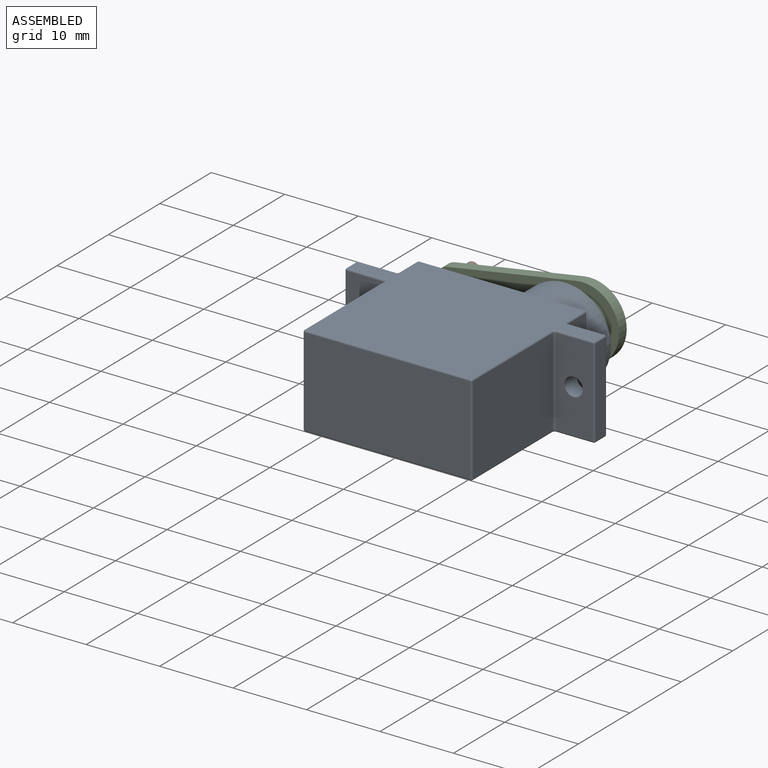
[diagram: assembled view]
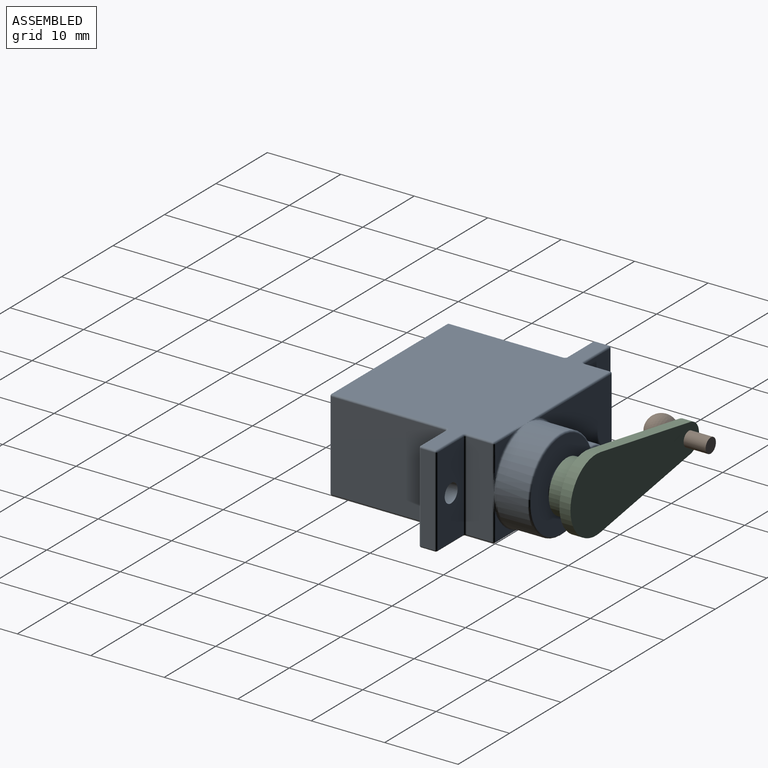
[diagram: assembled view, second angle]
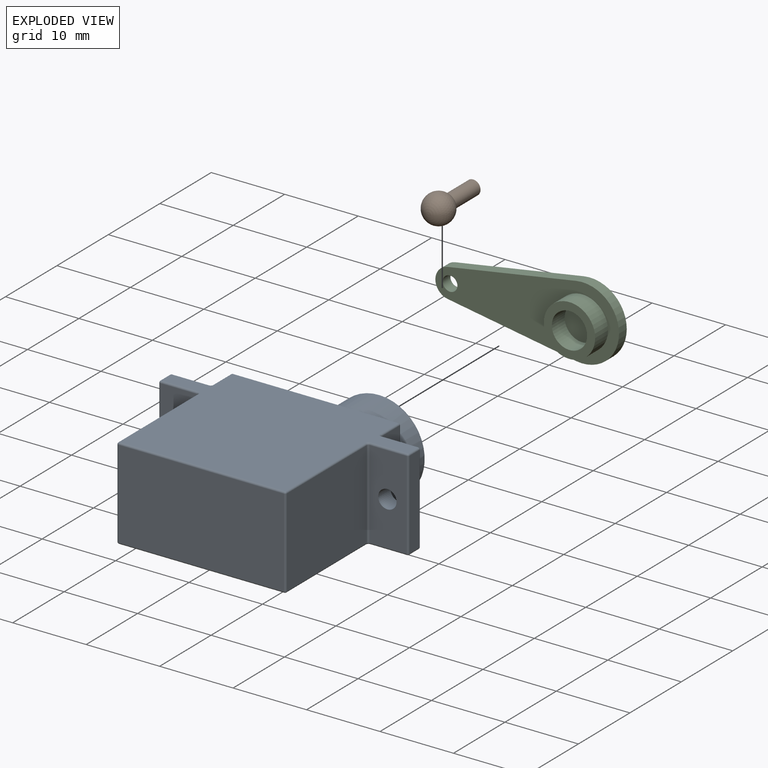
[diagram: exploded view]
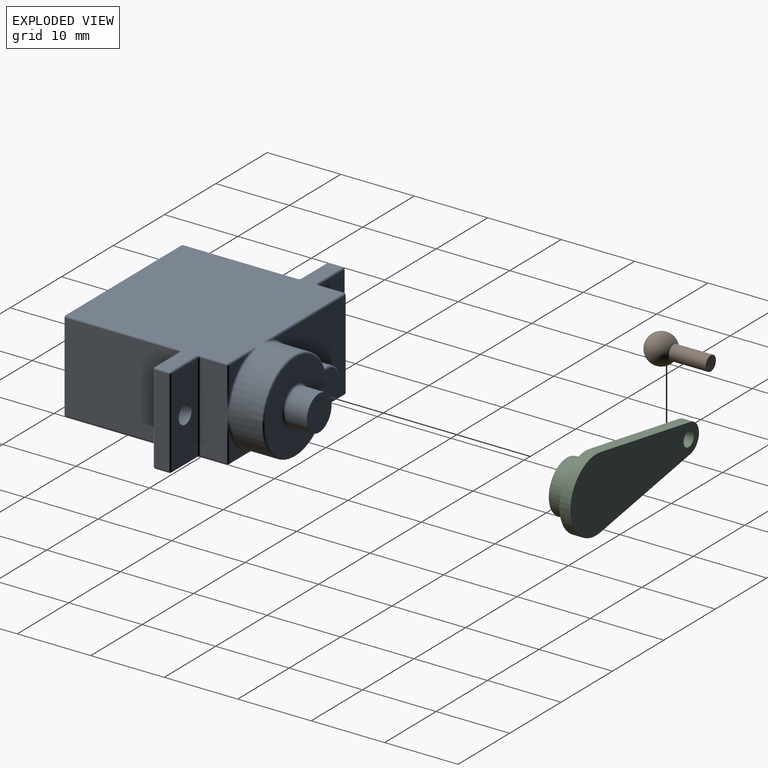
[diagram: exploded view, second angle]
ASSEMBLY  parts=3 mates=2
PART A: 118 faces, bbox 34x30.4x13.5 mm
  f0: plane 33.5x21.9mm, normal (0,0,-1), area 513.9mm2, adj f34,f35,f41,f42,f46,f51,f52,f57
  f1: plane 33.5x21.9mm, normal (0,0,1), area 513.9mm2, adj f31,f32,f44,f49,f54,f55,f58,f59
  f2: plane 14x12mm, normal (0,1,0), area 122.6mm2, adj f96,f97,f99,f100,f110,f111
  f3: plane 3.5x3.5mm, normal (0,1,0), area 4.5mm2, adj f109,f114,f117
  f4: plane 15.5x12mm, normal (-1,0,0), area 186mm2, adj f40,f41,f49,f50
  f5: plane 22.5x12mm, normal (0,-1,0), area 270mm2, adj f40,f42,f43,f44
  f6: plane 15.5x12mm, normal (1,0,0), area 186mm2, adj f43,f52,f53,f54
  f7: plane 12x5mm, normal (0,-1,0), area 55.1mm2, adj f22,f53,f62,f63,f64
  f8: plane 12x1.9mm, normal (1,0,0), area 22.8mm2, adj f63,f72,f73,f74
  f9: plane 12x5mm, normal (0,1,0), area 55.1mm2, adj f22,f73,f85,f86,f87
  f10: plane 12x3.5mm, normal (1,0,0), area 42mm2, adj f24,f25,f86,f102,f103,f113,f114
  f11: plane 3.5x3.5mm, normal (0,1,0), area 4.5mm2, adj f101,f112,f113
  f12: plane 12x3.5mm, normal (-1,0,0), area 42mm2, adj f83,f84,f95,f96
  f13: plane 12x5mm, normal (0,1,0), area 55.1mm2, adj f21,f70,f71,f79,f83
  f14: plane 12x1.9mm, normal (-1,0,0), area 22.8mm2, adj f60,f61,f69,f70
  f15: plane 12x5mm, normal (0,-1,0), area 55.1mm2, adj f21,f50,f51,f59,f60
  f16: cylinder r=6.25mm len=12.5mm, axis (0,-1,0), area 146.5mm2, adj f27,f28,f29,f37,f38,f82,f88,f98
  f17: cylinder r=2.4mm len=4.8mm, axis (0,-1,0), area 34.8mm2, adj f81,f88,f97,f98
  f18: plane 14.4x12mm, normal (0,1,0), area 100mm2, adj f23,f80,f81,f82,f89
  f19: cylinder r=2.4mm len=4.8mm, axis (0,-1,0), area 44.5mm2, adj f20,f23
  f20: plane 4.8x4.8mm, normal (0,1,0), area 18.1mm2, adj f19
  f21: cylinder r=1.25mm len=2.5mm, axis (0,1,0), area 18.8mm2, adj f13,f15
  f22: cylinder r=1.25mm len=2.5mm, axis (0,1,0), area 18.8mm2, adj f7,f9
  f23: torus R=2.65mm, axis (0,1,0), area 6.1mm2, adj f18,f19
  f24: bspline ~2.5x0.25mm, area 0.5mm2, adj f10,f25,f114,f116
  f25: bspline ~2.5x0.25mm, area 0.5mm2, adj f10,f24,f26,f113
  f26: bspline ~2.5x0.41mm, area 0.4mm2, adj f25,f27,f112,f113
  f27: bspline ~2.42x0.48mm, area 0.4mm2, adj f16,f26,f28,f112
  f28: bspline ~2.42x0.48mm, area 0.4mm2, adj f16,f27,f116,f117
  f29: bspline ~2.42x0.48mm, area 0.4mm2, adj f16,f30,f111,f115
  f30: bspline ~2.5x0.41mm, area 0.4mm2, adj f29,f31,f110,f111
  f31: bspline ~2.5x0.25mm, area 0.5mm2, adj f1,f30,f32,f110
  f32: bspline ~2.5x0.25mm, area 0.5mm2, adj f1,f31,f33,f109
  f33: bspline ~2.5x0.41mm, area 0.4mm2, adj f32,f109,f115,f117
  f34: bspline ~2.5x0.25mm, area 0.5mm2, adj f0,f35,f101,f106
  f35: bspline ~2.5x0.25mm, area 0.5mm2, adj f0,f34,f36,f100
  f36: bspline ~2.5x0.41mm, area 0.4mm2, adj f35,f37,f99,f100
  f37: bspline ~2.42x0.48mm, area 0.4mm2, adj f16,f36,f38,f99
  f38: bspline ~2.42x0.48mm, area 0.4mm2, adj f16,f37,f106,f112
  f39: sphere r=0.25mm, area 0.1mm2, adj f40,f41,f42
  f40: cylinder r=0.25mm len=12mm, axis (0,0,-1), area 4.7mm2, adj f4,f5,f39,f45
  f41: cylinder r=0.25mm len=15.5mm, axis (0,-1,0), area 6.1mm2, adj f0,f4,f39,f46
  f42: cylinder r=0.25mm len=22.5mm, axis (1,0,0), area 8.8mm2, adj f0,f5,f39,f47
  f43: cylinder r=0.25mm len=12mm, axis (0,0,-1), area 4.7mm2, adj f5,f6,f47,f48
  f44: cylinder r=0.25mm len=22.5mm, axis (-1,0,0), area 8.8mm2, adj f1,f5,f45,f48
  f45: sphere r=0.25mm, area 0.1mm2, adj f40,f44,f49
  f46: torus R=0.5mm, axis (0,0,1), area 0.2mm2, adj f0,f41,f50,f51
  f47: sphere r=0.25mm, area 0.1mm2, adj f42,f43,f52
  f48: sphere r=0.25mm, area 0.1mm2, adj f43,f44,f54
  f49: cylinder r=0.25mm len=15.5mm, axis (0,1,0), area 6.1mm2, adj f1,f4,f45,f55
  f50: cylinder r=0.25mm len=12mm, axis (0,0,1), area 4.7mm2, adj f4,f15,f46,f55
  f51: cylinder r=0.25mm len=5mm, axis (1,0,0), area 2mm2, adj f0,f15,f46,f56
  f52: cylinder r=0.25mm len=15.5mm, axis (0,1,0), area 6.1mm2, adj f0,f6,f47,f57
  f53: cylinder r=0.25mm len=12mm, axis (0,0,1), area 4.7mm2, adj f6,f7,f57,f58
  f54: cylinder r=0.25mm len=15.5mm, axis (0,-1,0), area 6.1mm2, adj f1,f6,f48,f58
  f55: torus R=0.5mm, axis (0,0,1), area 0.2mm2, adj f1,f49,f50,f59
  f56: sphere r=0.25mm, area 0.1mm2, adj f51,f60,f61
  f57: torus R=0.5mm, axis (0,0,1), area 0.2mm2, adj f0,f52,f53,f62
  f58: torus R=0.5mm, axis (0,0,1), area 0.2mm2, adj f1,f53,f54,f64
  f59: cylinder r=0.25mm len=5mm, axis (-1,0,0), area 2mm2, adj f1,f15,f55,f65
  f60: cylinder r=0.25mm len=12mm, axis (0,0,-1), area 4.7mm2, adj f14,f15,f56,f65
  f61: cylinder r=0.25mm len=1.9mm, axis (0,-1,0), area 0.7mm2, adj f0,f14,f56,f66
  f62: cylinder r=0.25mm len=5mm, axis (1,0,0), area 2mm2, adj f0,f7,f57,f67
  f63: cylinder r=0.25mm len=12mm, axis (0,0,-1), area 4.7mm2, adj f7,f8,f67,f68
  f64: cylinder r=0.25mm len=5mm, axis (-1,0,0), area 2mm2, adj f1,f7,f58,f68
  f65: sphere r=0.25mm, area 0.1mm2, adj f59,f60,f69
  f66: sphere r=0.25mm, area 0.1mm2, adj f61,f70,f71
  f67: sphere r=0.25mm, area 0.1mm2, adj f62,f63,f72
  f68: sphere r=0.25mm, area 0.1mm2, adj f63,f64,f74
  f69: cylinder r=0.25mm len=1.9mm, axis (0,1,0), area 0.7mm2, adj f1,f14,f65,f75
  f70: cylinder r=0.25mm len=12mm, axis (0,0,-1), area 4.7mm2, adj f13,f14,f66,f75
  f71: cylinder r=0.25mm len=5mm, axis (-1,0,0), area 2mm2, adj f0,f13,f66,f76
  f72: cylinder r=0.25mm len=1.9mm, axis (0,1,0), area 0.7mm2, adj f0,f8,f67,f77
  f73: cylinder r=0.25mm len=12mm, axis (0,0,-1), area 4.7mm2, adj f8,f9,f77,f78
  f74: cylinder r=0.25mm len=1.9mm, axis (0,-1,0), area 0.7mm2, adj f1,f8,f68,f78
  f75: sphere r=0.25mm, area 0.1mm2, adj f69,f70,f79
  f76: torus R=0.5mm, axis (0,0,1), area 0.2mm2, adj f0,f71,f83,f84
  f77: sphere r=0.25mm, area 0.1mm2, adj f72,f73,f85
  f78: sphere r=0.25mm, area 0.1mm2, adj f73,f74,f87
  f79: cylinder r=0.25mm len=5mm, axis (1,0,0), area 2mm2, adj f1,f13,f75,f91
  f80: torus R=0.5mm, axis (0,1,0), area 0.2mm2, adj f18,f81,f82,f88
  f81: torus R=2.15mm, axis (0,1,0), area 3.1mm2, adj f17,f18,f80,f89
  f82: torus R=6mm, axis (0,1,0), area 13.2mm2, adj f16,f18,f80,f89
  f83: cylinder r=0.25mm len=12mm, axis (0,0,1), area 4.7mm2, adj f12,f13,f76,f91
  f84: cylinder r=0.25mm len=3.5mm, axis (0,-1,0), area 1.4mm2, adj f0,f12,f76,f92
  f85: cylinder r=0.25mm len=5mm, axis (-1,0,0), area 2mm2, adj f0,f9,f77,f93
  f86: cylinder r=0.25mm len=12mm, axis (0,0,1), area 4.7mm2, adj f9,f10,f93,f94
  f87: cylinder r=0.25mm len=5mm, axis (1,0,0), area 2mm2, adj f1,f9,f78,f94
  f88: cylinder r=0.25mm len=4.3mm, axis (0,1,0), area 1.4mm2, adj f16,f17,f80,f90
  f89: torus R=0.5mm, axis (0,1,0), area 0.2mm2, adj f18,f81,f82,f98
  f90: sphere r=0.25mm, area 0.1mm2, adj f88,f97,f99
  f91: torus R=0.5mm, axis (0,0,1), area 0.2mm2, adj f1,f79,f83,f95
  f92: sphere r=0.25mm, area 0.1mm2, adj f84,f96,f100
  f93: torus R=0.5mm, axis (0,0,1), area 0.2mm2, adj f0,f85,f86,f102
  f94: torus R=0.5mm, axis (0,0,1), area 0.2mm2, adj f1,f86,f87,f103
  f95: cylinder r=0.25mm len=3.5mm, axis (0,1,0), area 1.4mm2, adj f1,f12,f91,f104
  f96: cylinder r=0.25mm len=12mm, axis (0,0,-1), area 4.7mm2, adj f2,f12,f92,f104
  f97: torus R=2.65mm, axis (0,-1,0), area 3.3mm2, adj f2,f17,f90,f105
  f98: cylinder r=0.25mm len=4.3mm, axis (0,1,0), area 1.4mm2, adj f16,f17,f89,f105
  f99: torus R=6.5mm, axis (0,-1,0), area 1.9mm2, adj f2,f16,f36,f37,f90
  f100: cylinder r=0.25mm len=14.01mm, axis (-1,0,0), area 5.5mm2, adj f0,f2,f35,f36,f92
  f101: cylinder r=0.25mm len=3.51mm, axis (-1,0,0), area 1.4mm2, adj f0,f11,f34,f106,f107
  f102: cylinder r=0.25mm len=3.5mm, axis (0,1,0), area 1.4mm2, adj f0,f10,f93,f107
  f103: cylinder r=0.25mm len=3.5mm, axis (0,-1,0), area 1.4mm2, adj f1,f10,f94,f108
  f104: sphere r=0.25mm, area 0.1mm2, adj f95,f96,f110
  f105: sphere r=0.25mm, area 0.1mm2, adj f97,f98,f111
  f106: bspline ~2.5x0.41mm, area 0.4mm2, adj f34,f38,f101,f112
  f107: sphere r=0.25mm, area 0.1mm2, adj f101,f102,f113
  f108: sphere r=0.25mm, area 0.1mm2, adj f103,f109,f114
  f109: cylinder r=0.25mm len=3.51mm, axis (1,0,0), area 1.4mm2, adj f1,f3,f32,f33,f108
  f110: cylinder r=0.25mm len=14.01mm, axis (1,0,0), area 5.5mm2, adj f1,f2,f30,f31,f104
  f111: torus R=6.5mm, axis (0,-1,0), area 1.9mm2, adj f2,f16,f29,f30,f105
  f112: torus R=6.5mm, axis (0,-1,0), area 2mm2, adj f11,f16,f26,f27,f38,f106
  f113: cylinder r=0.25mm len=3.51mm, axis (0,0,-1), area 1.4mm2, adj f10,f11,f25,f26,f107
  f114: cylinder r=0.25mm len=3.51mm, axis (0,0,-1), area 1.4mm2, adj f3,f10,f24,f108,f116
  f115: bspline ~2.42x0.48mm, area 0.4mm2, adj f16,f29,f33,f117
  f116: bspline ~2.5x0.41mm, area 0.4mm2, adj f24,f28,f114,f117
  f117: torus R=6.5mm, axis (0,-1,0), area 2mm2, adj f3,f16,f28,f33,f115,f116
PART B: 3 faces, bbox 4x8.7x4 mm
  f0: cylinder r=1mm len=5mm, axis (0,1,0), area 31.4mm2, adj f1,f2
  f1: plane 2x2mm, normal (0,1,0), area 3.1mm2, adj f0
  f2: sphere r=2mm, area 46.9mm2, adj f0
PART C: 11 faces, bbox 25x4x10 mm
  f0: cylinder r=2.4mm len=4.8mm, axis (0,1,0), area 37.7mm2, adj f2,f10
  f1: cylinder r=3.5mm len=7mm, axis (0,1,0), area 55mm2, adj f2,f3
  f2: plane 7x7mm, normal (0,-1,0), area 20.4mm2, adj f0,f1
  f3: plane 25x10mm, normal (0,-1,0), area 131.7mm2, adj f1,f5,f6,f7,f8,f9
  f4: plane 25x10mm, normal (0,1,0), area 170.2mm2, adj f5,f6,f7,f8,f9
  f5: cylinder r=1mm len=2mm, axis (0,-1,0), area 9.4mm2, adj f3,f4
  f6: cylinder r=2mm len=3.94mm, axis (0,-1,0), area 8.4mm2, adj f3,f4,f7,f9
  f7: plane 17.5x2.96mm, normal (-0.17,0,-0.99), area 26.6mm2, adj f3,f4,f6,f8
  f8: cylinder r=5mm len=10mm, axis (0,-1,0), area 26.1mm2, adj f3,f4,f7,f9
  f9: plane 17.5x2.96mm, normal (-0.17,0,0.99), area 26.6mm2, adj f3,f4,f6,f8
  f10: plane 4.8x4.8mm, normal (0,-1,0), area 18.1mm2, adj f0
PLACE A t=(0,-3.45,0)mm
PLACE B rot(axis=(0.04,-1,0),0deg) t=(0,-2.95,0)mm
PLACE C rot(axis=(0,1,0),0deg) t=(0,-3.45,0)mm
MATE revolute C.f0 <-> A.f99  axis (0,1,0) through (5.25,18.95,6.25)mm
MATE fastened B.f0 <-> C.f5  axis (0,1,0) through (-12.75,23.45,6.25)mm
